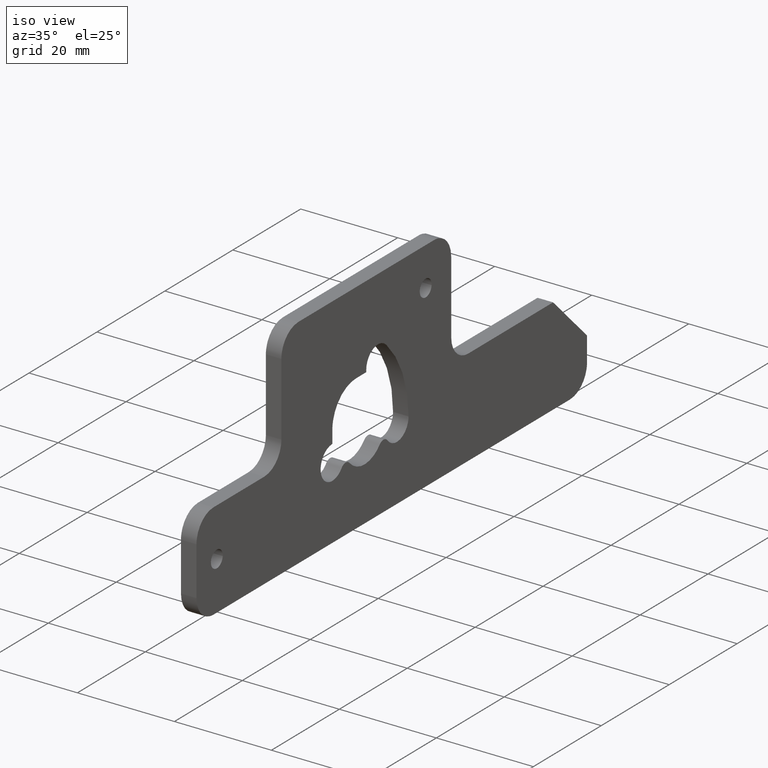
[diagram: clean part render]
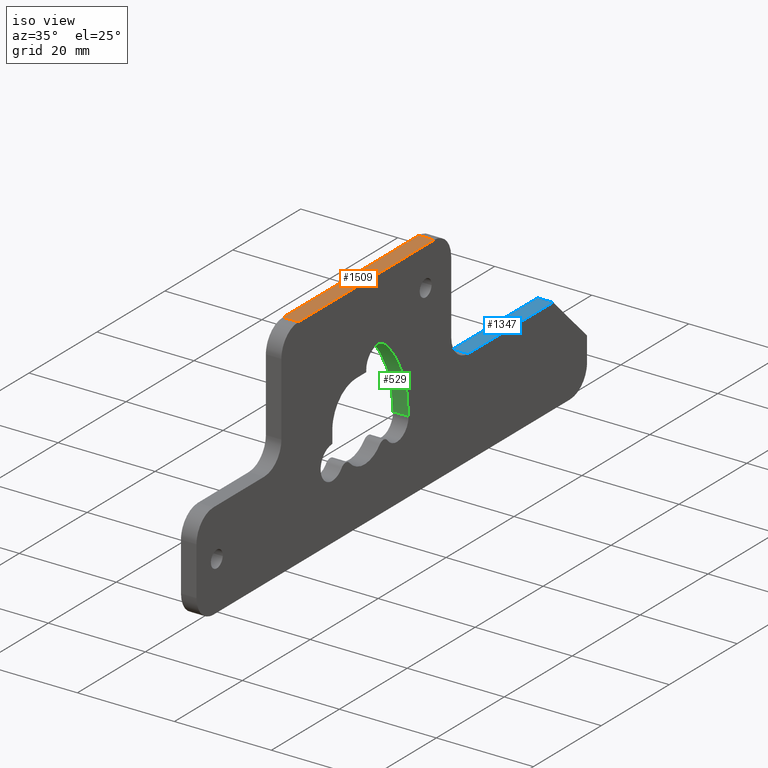
[diagram: same view with three faces highlighted in distinct colors, each labeled with its STEP entity id]
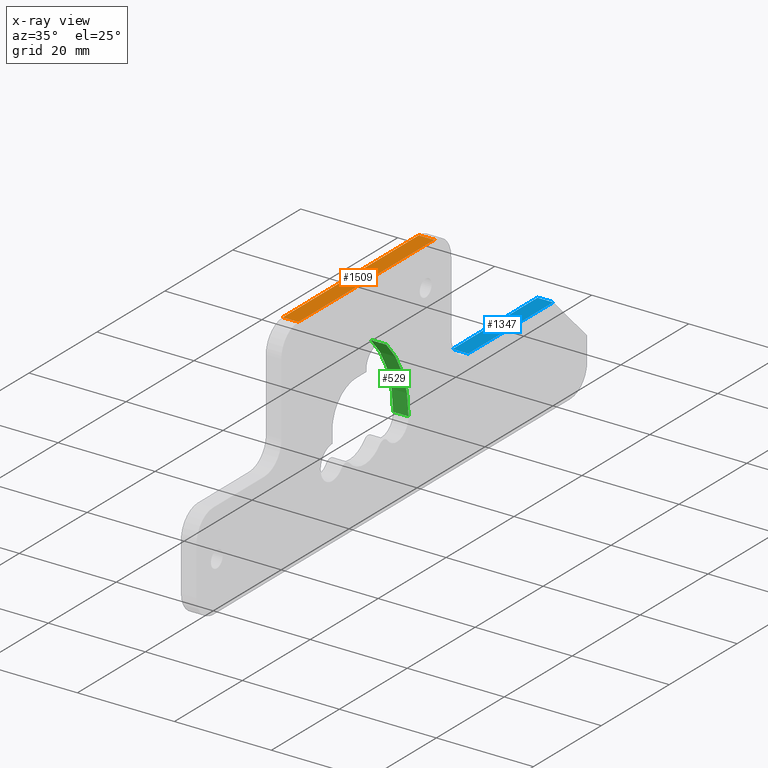
[diagram: x-ray of the same camera — body ghosted, the three highlighted faces saturated]
A machine part, iso view with three faces highlighted in distinct colors.
The next image is the same camera in x-ray (body ghosted, the three faces saturated) — at least one of them is partly hidden behind the body in this view.
Their STEP definitions:

[orange] entity #1509 — the highlighted face is a freeform B-spline surface patch.
#1443=CARTESIAN_POINT('',(0.0,20.500000000000000,30.0));
#1444=VERTEX_POINT('',#1443);
#1458=CARTESIAN_POINT('',(3.200000000000000,20.500000000000000,30.0));
#1459=VERTEX_POINT('',#1458);
#1460=CARTESIAN_POINT('',(3.200000000000000,20.500000000000000,30.0));
#1461=CARTESIAN_POINT('',(0.0,20.500000000000000,30.0));
#1462=QUASI_UNIFORM_CURVE('',1,(#1460,#1461),.UNSPECIFIED.,.F.,.U.);
#1463=EDGE_CURVE('',#1459,#1444,#1462,.T.);
#1482=CARTESIAN_POINT('',(-0.159839993797779,-21.497999922472239,30.0));
#1483=CARTESIAN_POINT('',(3.359840079628468,-21.497999922472239,30.0));
#1484=CARTESIAN_POINT('',(-0.159839993797779,22.498000995355849,30.0));
#1485=CARTESIAN_POINT('',(3.359840079628468,22.498000995355849,30.0));
#1486=B_SPLINE_SURFACE_WITH_KNOTS('',1,1,((#1482,#1484),(#1483,#1485)),.UNSPECIFIED.,.F.,.F.,.U.,(2,2),(2,2),(0.0,3.519680073426247),(0.0,43.996000917828077),.UNSPECIFIED.);
#1487=CARTESIAN_POINT('',(0.0,-19.500000000000000,30.0));
#1488=VERTEX_POINT('',#1487);
#1489=CARTESIAN_POINT('',(0.0,-19.500000000000000,30.0));
#1490=CARTESIAN_POINT('',(0.0,20.500000000000000,30.0));
#1491=QUASI_UNIFORM_CURVE('',1,(#1489,#1490),.UNSPECIFIED.,.F.,.U.);
#1492=EDGE_CURVE('',#1488,#1444,#1491,.T.);
#1493=ORIENTED_EDGE('',*,*,#1492,.F.);
#1494=CARTESIAN_POINT('',(3.200000000000000,-19.500000000000000,30.0));
#1495=VERTEX_POINT('',#1494);
#1496=CARTESIAN_POINT('',(3.200000000000000,-19.500000000000000,30.0));
#1497=CARTESIAN_POINT('',(0.0,-19.500000000000000,30.0));
#1498=QUASI_UNIFORM_CURVE('',1,(#1496,#1497),.UNSPECIFIED.,.F.,.U.);
#1499=EDGE_CURVE('',#1495,#1488,#1498,.T.);
#1500=ORIENTED_EDGE('',*,*,#1499,.F.);
#1501=CARTESIAN_POINT('',(3.200000000000000,-19.500000000000000,30.0));
#1502=CARTESIAN_POINT('',(3.200000000000000,20.500000000000000,30.0));
#1503=QUASI_UNIFORM_CURVE('',1,(#1501,#1502),.UNSPECIFIED.,.F.,.U.);
#1504=EDGE_CURVE('',#1495,#1459,#1503,.T.);
#1505=ORIENTED_EDGE('',*,*,#1504,.T.);
#1506=ORIENTED_EDGE('',*,*,#1463,.T.);
#1507=EDGE_LOOP('',(#1493,#1500,#1505,#1506));
#1508=FACE_OUTER_BOUND('',#1507,.T.);
#1509=ADVANCED_FACE('',(#1508),#1486,.T.);

[blue] entity #1347 — the highlighted face is a freeform B-spline surface patch.
#1297=CARTESIAN_POINT('',(0.0,55.500000000000000,5.000000000000100));
#1298=VERTEX_POINT('',#1297);
#1304=CARTESIAN_POINT('',(3.200000000000000,55.500000000000000,5.000000000000100));
#1305=VERTEX_POINT('',#1304);
#1306=CARTESIAN_POINT('',(3.200000000000000,55.500000000000000,5.000000000000100));
#1307=CARTESIAN_POINT('',(0.0,55.500000000000000,5.000000000000100));
#1308=QUASI_UNIFORM_CURVE('',1,(#1306,#1307),.UNSPECIFIED.,.F.,.U.);
#1309=EDGE_CURVE('',#1305,#1298,#1308,.T.);
#1320=CARTESIAN_POINT('',(-0.159839993797779,56.748749951545157,5.000000000000100));
#1321=CARTESIAN_POINT('',(-0.159839993797779,29.251249377902589,5.000000000000100));
#1322=CARTESIAN_POINT('',(3.359840079628468,56.748749951545157,5.000000000000100));
#1323=CARTESIAN_POINT('',(3.359840079628468,29.251249377902589,5.000000000000100));
#1324=B_SPLINE_SURFACE_WITH_KNOTS('',1,1,((#1320,#1322),(#1321,#1323)),.UNSPECIFIED.,.F.,.F.,.U.,(2,2),(2,2),(0.0,27.497500573642569),(0.0,3.519680073426248),.UNSPECIFIED.);
#1325=CARTESIAN_POINT('',(0.0,30.500000000000000,5.000000000000100));
#1326=VERTEX_POINT('',#1325);
#1327=CARTESIAN_POINT('',(0.0,30.500000000000000,5.000000000000100));
#1328=CARTESIAN_POINT('',(0.0,55.500000000000000,5.000000000000100));
#1329=QUASI_UNIFORM_CURVE('',1,(#1327,#1328),.UNSPECIFIED.,.F.,.U.);
#1330=EDGE_CURVE('',#1326,#1298,#1329,.T.);
#1331=ORIENTED_EDGE('',*,*,#1330,.F.);
#1332=CARTESIAN_POINT('',(3.200000000000000,30.500000000000000,5.000000000000100));
#1333=VERTEX_POINT('',#1332);
#1334=CARTESIAN_POINT('',(3.200000000000000,30.500000000000000,5.000000000000100));
#1335=CARTESIAN_POINT('',(0.0,30.500000000000000,5.000000000000100));
#1336=QUASI_UNIFORM_CURVE('',1,(#1334,#1335),.UNSPECIFIED.,.F.,.U.);
#1337=EDGE_CURVE('',#1333,#1326,#1336,.T.);
#1338=ORIENTED_EDGE('',*,*,#1337,.F.);
#1339=CARTESIAN_POINT('',(3.200000000000000,30.500000000000000,5.000000000000100));
#1340=CARTESIAN_POINT('',(3.200000000000000,55.500000000000000,5.000000000000100));
#1341=QUASI_UNIFORM_CURVE('',1,(#1339,#1340),.UNSPECIFIED.,.F.,.U.);
#1342=EDGE_CURVE('',#1333,#1305,#1341,.T.);
#1343=ORIENTED_EDGE('',*,*,#1342,.T.);
#1344=ORIENTED_EDGE('',*,*,#1309,.T.);
#1345=EDGE_LOOP('',(#1331,#1338,#1343,#1344));
#1346=FACE_OUTER_BOUND('',#1345,.T.);
#1347=ADVANCED_FACE('',(#1346),#1324,.T.);

[green] entity #529 — the highlighted face is a freeform B-spline surface patch.
#428=CARTESIAN_POINT('',(0.0,12.949999999999999,0.0));
#429=VERTEX_POINT('',#428);
#452=CARTESIAN_POINT('',(3.200000000000000,12.949999999999999,0.0));
#453=VERTEX_POINT('',#452);
#469=CARTESIAN_POINT('',(3.200000000000000,12.949999999999999,0.0));
#470=CARTESIAN_POINT('',(0.0,12.949999999999999,0.0));
#471=QUASI_UNIFORM_CURVE('',1,(#469,#470),.UNSPECIFIED.,.F.,.U.);
#472=EDGE_CURVE('',#453,#429,#471,.T.);
#477=CARTESIAN_POINT('',(3.280000000000001,12.949145172790640,-0.195910721938475));
#478=CARTESIAN_POINT('',(-0.082000000000000,12.949145172790640,-0.195910721938475));
#479=CARTESIAN_POINT('',(3.280000000000000,13.035743675952522,9.727294858601297));
#480=CARTESIAN_POINT('',(-0.082000000000000,13.035743675952522,9.727294858601297));
#481=CARTESIAN_POINT('',(3.280000000000001,5.755246659872684,16.470578294232510));
#482=CARTESIAN_POINT('',(-0.082000000000000,5.755246659872684,16.470578294232510));
#490=(BOUNDED_SURFACE()B_SPLINE_SURFACE(1,2,((#477,#479,#481),(#478,#480,#482)),.UNSPECIFIED.,.F.,.F.,.U.)B_SPLINE_SURFACE_WITH_KNOTS((2,2),(3,3),(0.0,3.362000000000001),(0.0,18.962178249691451),.UNSPECIFIED.)GEOMETRIC_REPRESENTATION_ITEM()RATIONAL_B_SPLINE_SURFACE(((1.0,0.912430223628223,0.995197496845150),(1.0,0.912430223628223,0.995197496845150)))REPRESENTATION_ITEM('')SURFACE());
#491=CARTESIAN_POINT('',(0.0,6.374547395093690,15.874547395093799));
#492=VERTEX_POINT('',#491);
#493=CARTESIAN_POINT('',(0.0,12.949999999999999,0.0));
#494=CARTESIAN_POINT('',(0.0,12.950000000000003,9.299094475276030));
#495=CARTESIAN_POINT('',(0.0,6.374547395093690,15.874547395093799));
#503=(BOUNDED_CURVE()B_SPLINE_CURVE(2,(#493,#494,#495),.UNSPECIFIED.,.F.,.U.)CURVE()GEOMETRIC_REPRESENTATION_ITEM()QUASI_UNIFORM_CURVE()RATIONAL_B_SPLINE_CURVE((1.0,0.923879532511286,1.0))REPRESENTATION_ITEM(''));
#504=EDGE_CURVE('',#429,#492,#503,.T.);
#505=ORIENTED_EDGE('',*,*,#504,.F.);
#506=ORIENTED_EDGE('',*,*,#472,.F.);
#507=CARTESIAN_POINT('',(3.200000000000000,6.374547395093690,15.874547395093799));
#508=VERTEX_POINT('',#507);
#509=CARTESIAN_POINT('',(3.200000000000000,12.949999999999999,0.0));
#510=CARTESIAN_POINT('',(3.200000000000000,12.950000000000003,9.299094475276030));
#511=CARTESIAN_POINT('',(3.200000000000000,6.374547395093690,15.874547395093799));
#519=(BOUNDED_CURVE()B_SPLINE_CURVE(2,(#509,#510,#511),.UNSPECIFIED.,.F.,.U.)CURVE()GEOMETRIC_REPRESENTATION_ITEM()QUASI_UNIFORM_CURVE()RATIONAL_B_SPLINE_CURVE((1.0,0.923879532511286,1.0))REPRESENTATION_ITEM(''));
#520=EDGE_CURVE('',#453,#508,#519,.T.);
#521=ORIENTED_EDGE('',*,*,#520,.T.);
#522=CARTESIAN_POINT('',(3.200000000000000,6.374547395093690,15.874547395093799));
#523=CARTESIAN_POINT('',(0.0,6.374547395093690,15.874547395093799));
#524=QUASI_UNIFORM_CURVE('',1,(#522,#523),.UNSPECIFIED.,.F.,.U.);
#525=EDGE_CURVE('',#508,#492,#524,.T.);
#526=ORIENTED_EDGE('',*,*,#525,.T.);
#527=EDGE_LOOP('',(#505,#506,#521,#526));
#528=FACE_OUTER_BOUND('',#527,.T.);
#529=ADVANCED_FACE('',(#528),#490,.F.);